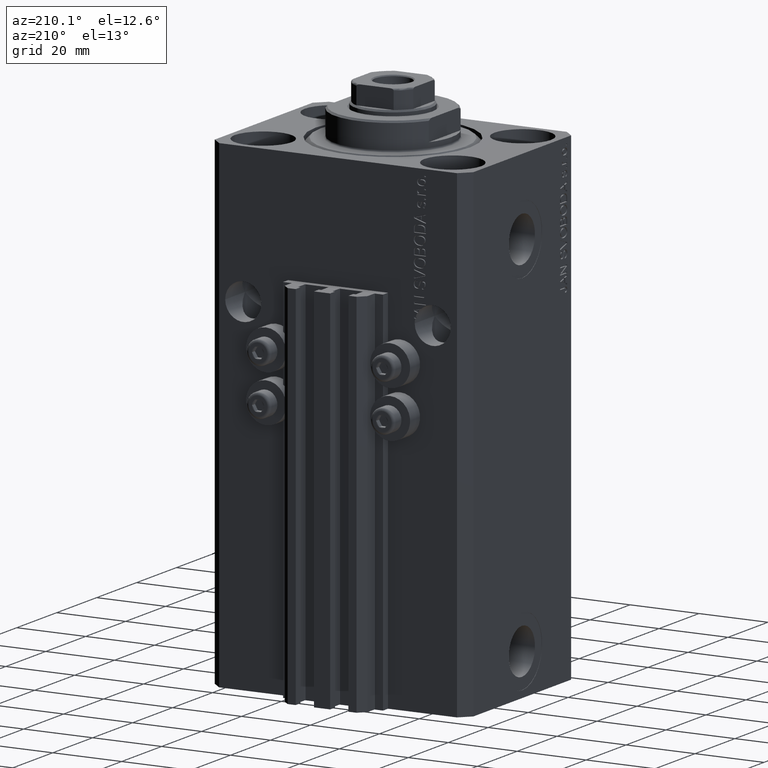
[diagram: clean part render]
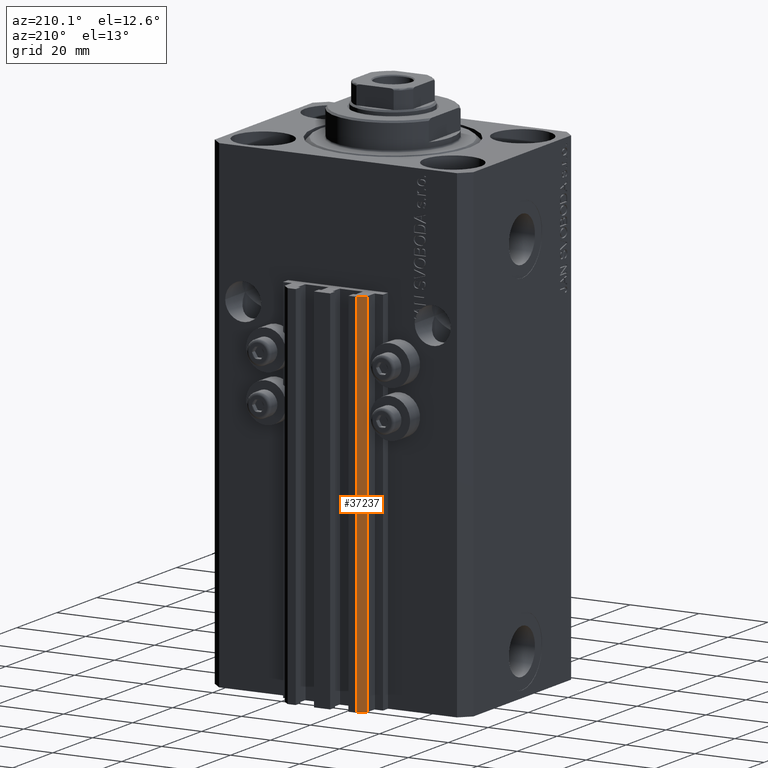
[diagram: same view with one face highlighted and labeled with its STEP entity id]
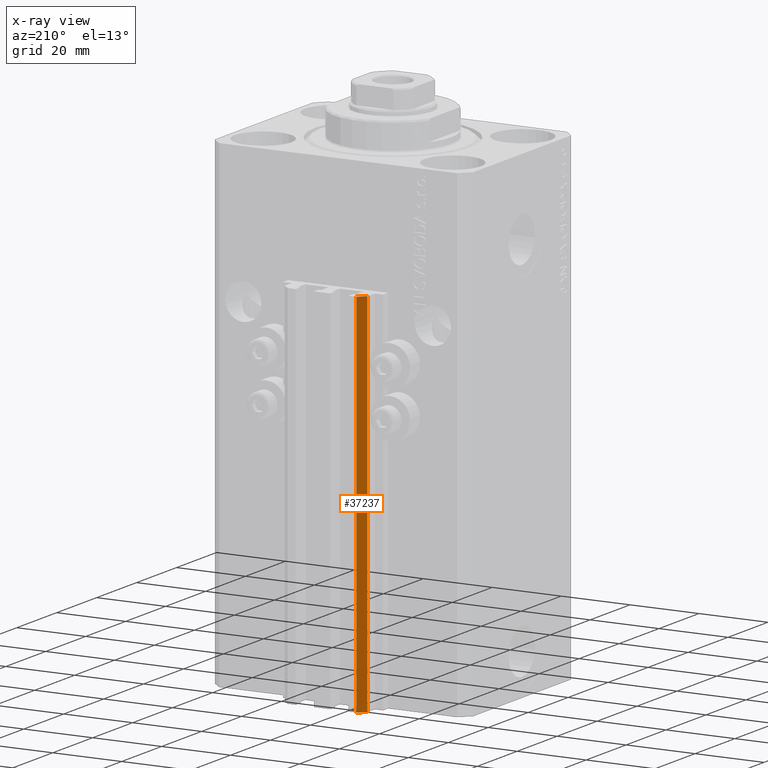
[diagram: x-ray of the same camera — body ghosted, the highlighted face saturated]
A machine part, auxiliary view. The second image highlights one B-rep face of the part: STEP entity #37237.
The next image is the same camera in x-ray: the body ghosted, the highlighted face saturated — about 0% of this face is hidden behind the body in this view.
In plain terms, the highlighted planar face has unit normal (-0.7071, 0.7071, 0).
Its self-contained STEP definition (entity closure, byte-faithful):
#643 = LINE ( 'NONE', #7819, #45080 ) ;
#771 = VERTEX_POINT ( 'NONE', #9043 ) ;
#1923 = EDGE_CURVE ( 'NONE', #31297, #43927, #13318, .T. ) ;
#1996 = DIRECTION ( 'NONE',  ( 0.000000000000000000, 0.000000000000000000, 1.000000000000000000 ) ) ;
#2464 = ORIENTED_EDGE ( 'NONE', *, *, #37813, .F. ) ;
#3186 = VECTOR ( 'NONE', #17380, 1000.000000000000227 ) ;
#5560 = CARTESIAN_POINT ( 'NONE',  ( -12.00000000000000000, 33.49999999999998579, -140.0000000000000000 ) ) ;
#7213 = DIRECTION ( 'NONE',  ( -0.7071067811865460184, -0.7071067811865489050, 0.000000000000000000 ) ) ;
#7819 = CARTESIAN_POINT ( 'NONE',  ( -10.00000000000000000, 35.50000000000000000, -140.0000000000000000 ) ) ;
#9043 = CARTESIAN_POINT ( 'NONE',  ( -12.00000000000000000, 33.49999999999998579, -33.00000000000000000 ) ) ;
#9473 = CARTESIAN_POINT ( 'NONE',  ( -10.00000000000000000, 35.50000000000000000, -140.0000000000000000 ) ) ;
#13318 = LINE ( 'NONE', #9473, #3186 ) ;
#16080 = LINE ( 'NONE', #45044, #28247 ) ;
#17380 = DIRECTION ( 'NONE',  ( -0.7071067811865460184, -0.7071067811865490160, 0.000000000000000000 ) ) ;
#18723 = DIRECTION ( 'NONE',  ( -0.7071067811865460184, -0.7071067811865490160, 0.000000000000000000 ) ) ;
#19196 = ORIENTED_EDGE ( 'NONE', *, *, #1923, .T. ) ;
#21019 = CARTESIAN_POINT ( 'NONE',  ( -12.00000000000000000, 33.49999999999998579, -140.0000000000000000 ) ) ;
#23432 = EDGE_LOOP ( 'NONE', ( #42985, #2464, #19196, #35026 ) ) ;
#23577 = CARTESIAN_POINT ( 'NONE',  ( -10.00000000000000000, 35.50000000000000000, -33.00000000000000000 ) ) ;
#23795 = LINE ( 'NONE', #5560, #28235 ) ;
#25433 = DIRECTION ( 'NONE',  ( -0.7071067811865490160, 0.7071067811865461294, 0.000000000000000000 ) ) ;
#25905 = FACE_OUTER_BOUND ( 'NONE', #23432, .T. ) ;
#28235 = VECTOR ( 'NONE', #1996, 1000.000000000000000 ) ;
#28247 = VECTOR ( 'NONE', #18723, 1000.000000000000227 ) ;
#29021 = PLANE ( 'NONE',  #45931 ) ;
#31297 = VERTEX_POINT ( 'NONE', #38955 ) ;
#32595 = CARTESIAN_POINT ( 'NONE',  ( -10.00000000000000000, 35.50000000000000000, -140.0000000000000000 ) ) ;
#34353 = EDGE_CURVE ( 'NONE', #43927, #771, #23795, .T. ) ;
#35026 = ORIENTED_EDGE ( 'NONE', *, *, #34353, .T. ) ;
#36785 = DIRECTION ( 'NONE',  ( 0.000000000000000000, 0.000000000000000000, 1.000000000000000000 ) ) ;
#37237 = ADVANCED_FACE ( 'NONE', ( #25905 ), #29021, .T. ) ;
#37813 = EDGE_CURVE ( 'NONE', #31297, #38898, #643, .T. ) ;
#38898 = VERTEX_POINT ( 'NONE', #23577 ) ;
#38955 = CARTESIAN_POINT ( 'NONE',  ( -10.00000000000000000, 35.50000000000000000, -140.0000000000000000 ) ) ;
#42985 = ORIENTED_EDGE ( 'NONE', *, *, #46000, .F. ) ;
#43927 = VERTEX_POINT ( 'NONE', #21019 ) ;
#45044 = CARTESIAN_POINT ( 'NONE',  ( -10.00000000000000000, 35.50000000000000000, -33.00000000000000000 ) ) ;
#45080 = VECTOR ( 'NONE', #36785, 1000.000000000000000 ) ;
#45931 = AXIS2_PLACEMENT_3D ( 'NONE', #32595, #25433, #7213 ) ;
#46000 = EDGE_CURVE ( 'NONE', #38898, #771, #16080, .T. ) ;